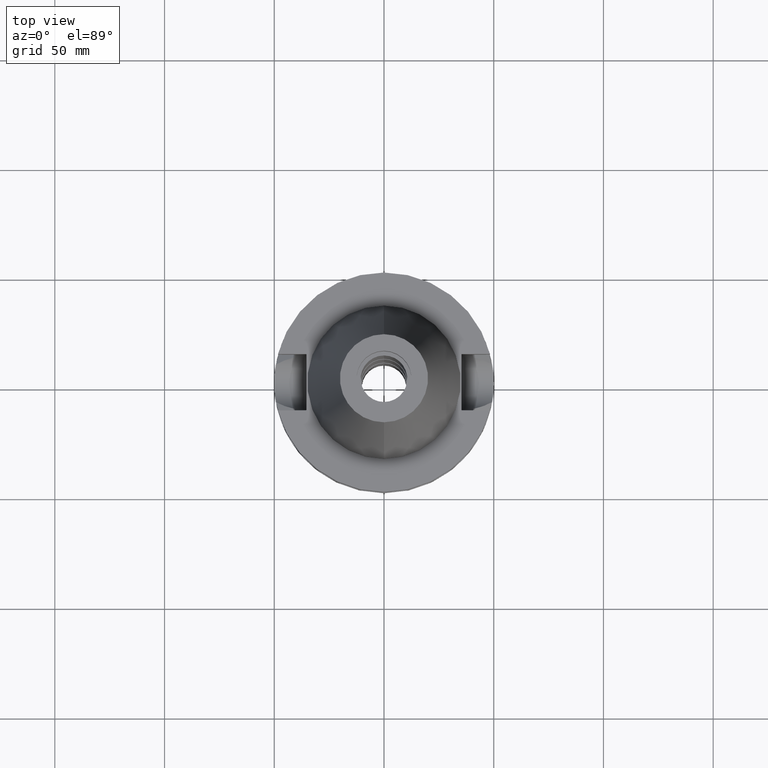
[diagram: clean part render]
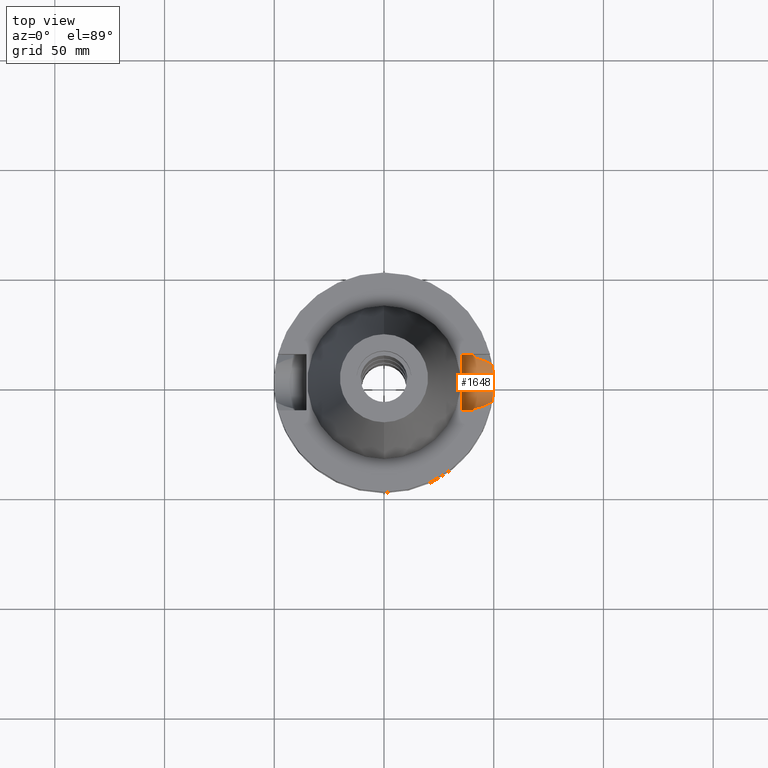
[diagram: same view with one face highlighted and labeled with its STEP entity id]
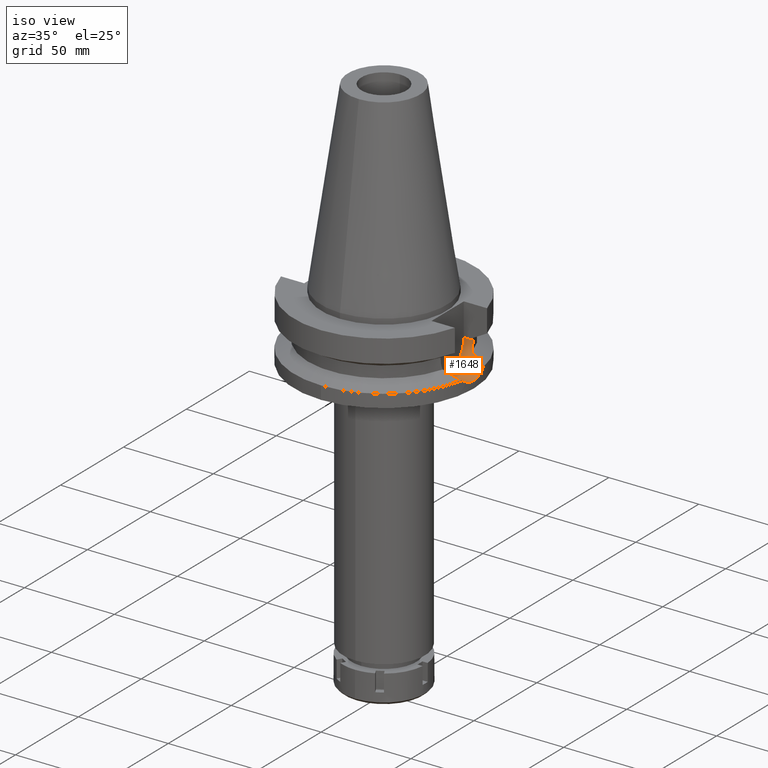
[diagram: same view with one face highlighted and labeled with its STEP entity id]
A machine part, top view. The second image highlights one B-rep face of the part: STEP entity #1648.
A second angle (iso view) of the same face is appended — the face is thin or edge-on in the first view.
In plain terms, the highlighted cylindrical surface (edge-blend (fillet) strip) has radius 12.85 mm, axis along (1, 0, 0).
Its self-contained STEP definition (entity closure, byte-faithful):
#46 = CARTESIAN_POINT ( 'NONE',  ( 40.73816446295361260, -12.11684043061108085, -25.53408629900406623 ) ) ;
#65 = CARTESIAN_POINT ( 'NONE',  ( 49.79167157622549666, 4.559534594611776015, -33.16387391772772020 ) ) ;
#117 = CARTESIAN_POINT ( 'NONE',  ( 49.78846270866008439, -4.594523424855490923, -33.15054213385935356 ) ) ;
#132 = CARTESIAN_POINT ( 'NONE',  ( 41.72695202863123853, -11.52184949740022546, -26.86112744394866780 ) ) ;
#136 = CARTESIAN_POINT ( 'NONE',  ( 49.71768142624588194, -5.302013673065737009, -32.85645924774143367 ) ) ;
#150 = CARTESIAN_POINT ( 'NONE',  ( 44.63123778810563635, -10.63756159773538634, -28.35952781543874934 ) ) ;
#175 = CARTESIAN_POINT ( 'NONE',  ( 40.59187880780699942, -12.59183787880622774, -23.71299268441998365 ) ) ;
#200 = CARTESIAN_POINT ( 'NONE',  ( 45.52394512665422610, 10.31079105187837719, -28.81878539422804053 ) ) ;
#219 = CARTESIAN_POINT ( 'NONE',  ( 46.11449621621563466, 10.07893013801353455, -29.12244178484737134 ) ) ;
#260 = CARTESIAN_POINT ( 'NONE',  ( 40.51818672788441233, -12.82722302283209537, -22.03685123483571218 ) ) ;
#272 = CARTESIAN_POINT ( 'NONE',  ( 35.39999999999999858, 12.84999999999999964, -21.14999999999999858 ) ) ;
#296 = CARTESIAN_POINT ( 'NONE',  ( 49.66983879164600779, 5.762335365603226123, -32.66220278209613070 ) ) ;
#330 = EDGE_CURVE ( 'NONE', #3474, #2330, #1992, .T. ) ;
#372 = CARTESIAN_POINT ( 'NONE',  ( 49.77976537357478293, -4.687973146015734116, -33.11444670168626914 ) ) ;
#401 = CARTESIAN_POINT ( 'NONE',  ( 49.26250064874000145, -8.556052234130000045, -30.73730776426999967 ) ) ;
#417 = VECTOR ( 'NONE', #1422, 1000.000000000000000 ) ;
#421 = CARTESIAN_POINT ( 'NONE',  ( 49.79049223401477064, -4.572427591324562002, -33.15897282298296034 ) ) ;
#450 = CARTESIAN_POINT ( 'NONE',  ( 40.60092153270026927, 12.56264230965691020, -23.85246783902318413 ) ) ;
#456 = CARTESIAN_POINT ( 'NONE',  ( 45.41306824773652551, -10.35296097958683426, -28.76175938571563151 ) ) ;
#459 = CARTESIAN_POINT ( 'NONE',  ( 40.56599320780300388, -12.67510280107394571, -23.26591223435243094 ) ) ;
#506 = CARTESIAN_POINT ( 'NONE',  ( 40.66327078203668322, 12.35978912949376252, -24.67232732615307000 ) ) ;
#544 = CARTESIAN_POINT ( 'NONE',  ( 49.26250064874000145, 8.556052234130000045, -30.73730776426999967 ) ) ;
#575 = DIRECTION ( 'NONE',  ( 0.0000000000000000000, 0.0000000000000000000, -1.000000000000000000 ) ) ;
#584 = CARTESIAN_POINT ( 'NONE',  ( 49.90868002525166247, 3.033071862613983427, -33.64325143797999829 ) ) ;
#588 = B_SPLINE_CURVE_WITH_KNOTS ( 'NONE', 3,
 ( #3086, #2803, #260, #3665, #3013, #459, #1600, #2730, #175, #2034, #1486, #2608, #46, #1166 ),
 .UNSPECIFIED., .F., .F.,
 ( 4, 2, 2, 1, 1, 2, 2, 4 ),
 ( 0.0000000000000000000, 0.2499999999999988898, 0.3749999999999984457, 0.4374999999999990563, 0.4687499999999992784, 0.4843749999999995004, 0.4999999999999997780, 1.000000000000000000 ),
 .UNSPECIFIED. ) ;
#593 = LINE ( 'NONE', #272, #1974 ) ;
#624 = CARTESIAN_POINT ( 'NONE',  ( 49.38717941611994888, 7.838199223078202493, -31.37794515800011652 ) ) ;
#689 = CARTESIAN_POINT ( 'NONE',  ( 49.76773170150818260, -4.814189221242565431, -33.06456005433830825 ) ) ;
#693 = EDGE_CURVE ( 'NONE', #2364, #901, #3269, .T. ) ;
#725 = CARTESIAN_POINT ( 'NONE',  ( 40.51083188481999997, 12.84999999999999964, -21.14999999999999858 ) ) ;
#797 = CARTESIAN_POINT ( 'NONE',  ( 35.39999999999999858, 0.0000000000000000000, -21.14999999999999858 ) ) ;
#800 = EDGE_CURVE ( 'NONE', #2903, #2150, #920, .T. ) ;
#805 = ORIENTED_EDGE ( 'NONE', *, *, #2548, .T. ) ;
#847 = CARTESIAN_POINT ( 'NONE',  ( 40.85052569294000335, -11.72538061688000077, -26.40718074535000426 ) ) ;
#853 = CARTESIAN_POINT ( 'NONE',  ( 49.93042287638220955, 2.648955485561525602, -33.73001242576225422 ) ) ;
#880 = ORIENTED_EDGE ( 'NONE', *, *, #3141, .T. ) ;
#898 = AXIS2_PLACEMENT_3D ( 'NONE', #797, #1993, #575 ) ;
#901 = VERTEX_POINT ( 'NONE', #1236 ) ;
#916 = CARTESIAN_POINT ( 'NONE',  ( 49.79235471004053437, 4.552050085695237946, -33.16671254725967799 ) ) ;
#920 = B_SPLINE_CURVE_WITH_KNOTS ( 'NONE', 3,
 ( #2895, #1202, #3409, #853, #584, #3165, #1484, #3468, #3425, #2049, #2840, #2011, #916, #65, #931, #296, #1221, #624, #1736 ),
 .UNSPECIFIED., .F., .F.,
 ( 4, 2, 2, 1, 1, 1, 1, 1, 2, 2, 2, 4 ),
 ( 0.0000000000000000000, 0.2499999999999735767, 0.3749999999999601430, 0.4374999999999533151, 0.4687499999999499845, 0.4843749999999483746, 0.4921874999999481526, 0.4960937499999479861, 0.4980468749999479861, 0.4999999999999479305, 0.7499999999999739098, 1.000000000000000000 ),
 .UNSPECIFIED. ) ;
#931 = CARTESIAN_POINT ( 'NONE',  ( 49.73969140305771219, 5.128104573547205725, -32.94785015692511365 ) ) ;
#1051 = ORIENTED_EDGE ( 'NONE', *, *, #330, .F. ) ;
#1060 = CARTESIAN_POINT ( 'NONE',  ( 46.36885263560388637, 9.973649025647654653, -29.25316101098443156 ) ) ;
#1081 = CARTESIAN_POINT ( 'NONE',  ( 47.19344910160641859, 9.615900425875310020, -29.67669642626275817 ) ) ;
#1085 = FACE_OUTER_BOUND ( 'NONE', #1254, .T. ) ;
#1094 = ORIENTED_EDGE ( 'NONE', *, *, #800, .T. ) ;
#1097 = CARTESIAN_POINT ( 'NONE',  ( 35.39999999999999858, 12.84999999999999964, -21.14999999999999858 ) ) ;
#1103 = CARTESIAN_POINT ( 'NONE',  ( 49.26250064874000145, 8.556052234130000045, -30.73730776426999967 ) ) ;
#1106 = ORIENTED_EDGE ( 'NONE', *, *, #693, .T. ) ;
#1166 = CARTESIAN_POINT ( 'NONE',  ( 40.85052569294000335, -11.72538061688000077, -26.40718074535000426 ) ) ;
#1202 = CARTESIAN_POINT ( 'NONE',  ( 50.00000000000001421, 0.7411344755569528875, -34.00000000000000000 ) ) ;
#1221 = CARTESIAN_POINT ( 'NONE',  ( 49.49358279817711548, 7.117195281448393196, -31.87757442703206223 ) ) ;
#1233 = CARTESIAN_POINT ( 'NONE',  ( 49.38718223195836998, -7.838183010540669571, -31.37795962664149840 ) ) ;
#1236 = CARTESIAN_POINT ( 'NONE',  ( 49.26250064874000145, -8.556052234130000045, -30.73730776426999967 ) ) ;
#1254 = EDGE_LOOP ( 'NONE', ( #2069, #880, #2998, #805, #1051, #3189, #1106, #2170, #1094 ) ) ;
#1285 = CARTESIAN_POINT ( 'NONE',  ( 45.34957090568771321, -10.37694622521031285, -28.72910062368678652 ) ) ;
#1288 = CARTESIAN_POINT ( 'NONE',  ( 49.75677467196931048, -4.924702406177010161, -33.01913543144370777 ) ) ;
#1311 = CARTESIAN_POINT ( 'NONE',  ( 40.85052569294000335, 11.72538061688000077, -26.40718074535000426 ) ) ;
#1337 = CARTESIAN_POINT ( 'NONE',  ( 40.74530080281117961, 12.08736009434965553, -25.53452049776151611 ) ) ;
#1344 = CARTESIAN_POINT ( 'NONE',  ( 44.15654115118628908, 10.83271555741861114, -28.11551176893261683 ) ) ;
#1362 = CARTESIAN_POINT ( 'NONE',  ( 48.13334722818734690, 9.173432845826361870, -30.15894009343378457 ) ) ;
#1370 = CARTESIAN_POINT ( 'NONE',  ( 40.60613069944914599, 12.54580339937320943, -23.92957563982541913 ) ) ;
#1402 = EDGE_CURVE ( 'NONE', #901, #2903, #3588, .T. ) ;
#1422 = DIRECTION ( 'NONE',  ( -1.000000000000000000, -3.510427359434999885E-14, 0.0000000000000000000 ) ) ;
#1484 = CARTESIAN_POINT ( 'NONE',  ( 49.84834361336439201, 3.896014778068053630, -33.39804380112810378 ) ) ;
#1486 = CARTESIAN_POINT ( 'NONE',  ( 40.59736304646015270, -12.57413740470831698, -23.79844990303990571 ) ) ;
#1518 = CARTESIAN_POINT ( 'NONE',  ( 49.91304139983333243, -3.031509745432707348, -33.66147740621446616 ) ) ;
#1547 = CARTESIAN_POINT ( 'NONE',  ( 49.66528726166652064, -5.772701196736823803, -32.63558093118592041 ) ) ;
#1567 = CARTESIAN_POINT ( 'NONE',  ( 49.49358958280588894, -7.117144943669853951, -31.87761218564103771 ) ) ;
#1596 = CARTESIAN_POINT ( 'NONE',  ( 49.26250064874000145, -8.556052234130000045, -30.73730776426999967 ) ) ;
#1600 = CARTESIAN_POINT ( 'NONE',  ( 40.57495692278774158, -12.64634763150194097, -23.43364197066028254 ) ) ;
#1617 = CARTESIAN_POINT ( 'NONE',  ( 43.71411760152985693, -10.94470254648135388, -27.88719717605412640 ) ) ;
#1648 = ADVANCED_FACE ( 'NONE', ( #1085 ), #2784, .F. ) ;
#1704 = CARTESIAN_POINT ( 'NONE',  ( 50.00000000000000000, 1.784861477417000026E-14, -34.00000000000000000 ) ) ;
#1736 = CARTESIAN_POINT ( 'NONE',  ( 49.26250064874000145, 8.556052234130000045, -30.73730776426999967 ) ) ;
#1783 = CARTESIAN_POINT ( 'NONE',  ( 35.39999999999999858, 0.0000000000000000000, -21.14999999999999858 ) ) ;
#1789 = CARTESIAN_POINT ( 'NONE',  ( 49.73400400824914414, -5.148705446761065119, -32.92453230238565709 ) ) ;
#1840 = CARTESIAN_POINT ( 'NONE',  ( 49.78968176231763465, -4.581260904491501584, -33.15560581003837370 ) ) ;
#1868 = CARTESIAN_POINT ( 'NONE',  ( 40.79434480643646310, 11.92111146967505952, -25.97063141241893547 ) ) ;
#1874 = CARTESIAN_POINT ( 'NONE',  ( 42.55240329774009922, -11.29884384422376620, -27.28791383645897994 ) ) ;
#1878 = CARTESIAN_POINT ( 'NONE',  ( 46.86981271928318193, 9.760815914162622065, -29.51053501378897792 ) ) ;
#1911 = CARTESIAN_POINT ( 'NONE',  ( 40.85052569294000335, -11.72538061688000077, -26.40718074535000426 ) ) ;
#1974 = VECTOR ( 'NONE', #2541, 1000.000000000000000 ) ;
#1992 = LINE ( 'NONE', #2823, #417 ) ;
#1993 = DIRECTION ( 'NONE',  ( 1.000000000000000000, 0.0000000000000000000, 0.0000000000000000000 ) ) ;
#1999 = CARTESIAN_POINT ( 'NONE',  ( 40.51083188481999997, -12.84999999999999964, -21.14999999999999858 ) ) ;
#2011 = CARTESIAN_POINT ( 'NONE',  ( 49.79343760594647250, 4.540156166081057876, -33.17121135384211073 ) ) ;
#2020 = CARTESIAN_POINT ( 'NONE',  ( 40.85052569294000335, 11.72538061688000077, -26.40718074535000426 ) ) ;
#2034 = CARTESIAN_POINT ( 'NONE',  ( 40.59544130991633892, -12.58034215982311466, -23.76883634622456398 ) ) ;
#2049 = CARTESIAN_POINT ( 'NONE',  ( 49.79881917393380775, 4.480667282867932144, -33.19355638855608248 ) ) ;
#2059 = EDGE_CURVE ( 'NONE', #2694, #2423, #593, .T. ) ;
#2069 = ORIENTED_EDGE ( 'NONE', *, *, #3388, .T. ) ;
#2086 = CARTESIAN_POINT ( 'NONE',  ( 49.79075586834895972, -4.569551829111532015, -33.16006813157581234 ) ) ;
#2097 = AXIS2_PLACEMENT_3D ( 'NONE', #1783, #2412, #2986 ) ;
#2139 = CARTESIAN_POINT ( 'NONE',  ( 50.00000000000000000, 1.784861477417000026E-14, -34.00000000000000000 ) ) ;
#2150 = VERTEX_POINT ( 'NONE', #544 ) ;
#2170 = ORIENTED_EDGE ( 'NONE', *, *, #1402, .T. ) ;
#2176 = CARTESIAN_POINT ( 'NONE',  ( 45.54719868882244782, 10.30188632293297601, -28.83074470532917388 ) ) ;
#2213 = CARTESIAN_POINT ( 'NONE',  ( 40.85052569294000335, 11.72538061688000077, -26.40718074535000426 ) ) ;
#2219 = CIRCLE ( 'NONE', #2097, 12.84999999999999964 ) ;
#2226 = CARTESIAN_POINT ( 'NONE',  ( 40.51083188481999287, 12.84999999999999964, -22.03306420386933695 ) ) ;
#2260 = VERTEX_POINT ( 'NONE', #2020 ) ;
#2330 = VERTEX_POINT ( 'NONE', #2833 ) ;
#2364 = VERTEX_POINT ( 'NONE', #847 ) ;
#2412 = DIRECTION ( 'NONE',  ( -1.000000000000000000, 0.0000000000000000000, 0.0000000000000000000 ) ) ;
#2417 = CARTESIAN_POINT ( 'NONE',  ( 50.00000000000000000, -0.7411200681605115692, -34.00000000000000000 ) ) ;
#2423 = VERTEX_POINT ( 'NONE', #2633 ) ;
#2449 = CARTESIAN_POINT ( 'NONE',  ( 45.20036505379954406, -10.43275246839017356, -28.65235555152838032 ) ) ;
#2473 = CARTESIAN_POINT ( 'NONE',  ( 45.59136809843026583, 10.28491122951865044, -28.85346039387473738 ) ) ;
#2497 = CARTESIAN_POINT ( 'NONE',  ( 40.68244012169061108, 12.29668327074609557, -24.88704817341103848 ) ) ;
#2541 = DIRECTION ( 'NONE',  ( 1.000000000000000000, -3.336643826789999529E-14, 0.0000000000000000000 ) ) ;
#2548 = EDGE_CURVE ( 'NONE', #2694, #2330, #2219, .T. ) ;
#2608 = CARTESIAN_POINT ( 'NONE',  ( 40.65435256583787549, -12.39003828017185427, -24.66355282957904294 ) ) ;
#2633 = CARTESIAN_POINT ( 'NONE',  ( 40.51083188481999997, 12.84999999999999964, -21.14999999999999858 ) ) ;
#2653 = CARTESIAN_POINT ( 'NONE',  ( 49.78559482734255681, -4.625556967520964236, -33.13863445799344021 ) ) ;
#2693 = CARTESIAN_POINT ( 'NONE',  ( 49.86086623973334753, -3.802647964326340002, -33.45142282165367220 ) ) ;
#2694 = VERTEX_POINT ( 'NONE', #1097 ) ;
#2701 = CARTESIAN_POINT ( 'NONE',  ( 40.62482334720413490, 12.48526811858512353, -24.19322874753378727 ) ) ;
#2730 = CARTESIAN_POINT ( 'NONE',  ( 40.58662124421019968, -12.60879381994003090, -23.62921300446435069 ) ) ;
#2760 = CARTESIAN_POINT ( 'NONE',  ( 45.45530024842548755, -10.33695596987587351, -28.78348041641067212 ) ) ;
#2764 = CARTESIAN_POINT ( 'NONE',  ( 45.65750107604360153, 10.25940794899631570, -28.88747069982555971 ) ) ;
#2784 = CYLINDRICAL_SURFACE ( 'NONE', #898, 12.85000000000000320 ) ;
#2803 = CARTESIAN_POINT ( 'NONE',  ( 40.51083188481999997, -12.84999999999999964, -21.59153425996736786 ) ) ;
#2823 = CARTESIAN_POINT ( 'NONE',  ( 40.51083188481999997, -12.84999999999999964, -21.14999999999999858 ) ) ;
#2833 = CARTESIAN_POINT ( 'NONE',  ( 35.39999999999999858, -12.84999999999999964, -21.14999999999999858 ) ) ;
#2840 = CARTESIAN_POINT ( 'NONE',  ( 49.79505876481736237, 4.522313403485289207, -33.17794514013029783 ) ) ;
#2895 = CARTESIAN_POINT ( 'NONE',  ( 50.00000000000000000, 1.784861477417000026E-14, -34.00000000000000000 ) ) ;
#2903 = VERTEX_POINT ( 'NONE', #1704 ) ;
#2915 = CARTESIAN_POINT ( 'NONE',  ( 49.62578926052089656, -6.100916815301578922, -32.46611871851167308 ) ) ;
#2937 = CARTESIAN_POINT ( 'NONE',  ( 49.98260827996666933, -1.500739276010107259, -33.93573032127258671 ) ) ;
#2986 = DIRECTION ( 'NONE',  ( 0.0000000000000000000, 1.000000000000000000, 0.0000000000000000000 ) ) ;
#2998 = ORIENTED_EDGE ( 'NONE', *, *, #2059, .F. ) ;
#3001 = CARTESIAN_POINT ( 'NONE',  ( 40.61156285954857026, 12.52823285237359130, -24.00849237159464167 ) ) ;
#3009 = CARTESIAN_POINT ( 'NONE',  ( 44.08861193614752239, -10.82337365640191607, -28.08015980787621046 ) ) ;
#3013 = CARTESIAN_POINT ( 'NONE',  ( 40.54944481090810626, -12.72806977530067840, -22.93044999934753037 ) ) ;
#3031 = CARTESIAN_POINT ( 'NONE',  ( 45.81096339955263375, 10.19961825139631983, -28.96638528637649301 ) ) ;
#3044 = CARTESIAN_POINT ( 'NONE',  ( 46.91824578726060224, -9.778909190488992209, -29.53589573621364650 ) ) ;
#3086 = CARTESIAN_POINT ( 'NONE',  ( 40.51083188481999997, -12.84999999999999964, -21.14999999999999858 ) ) ;
#3141 = EDGE_CURVE ( 'NONE', #2260, #2423, #3381, .T. ) ;
#3165 = CARTESIAN_POINT ( 'NONE',  ( 49.86954289321666778, 3.608495417701580887, -33.48453890198249638 ) ) ;
#3189 = ORIENTED_EDGE ( 'NONE', *, *, #3460, .T. ) ;
#3269 = B_SPLINE_CURVE_WITH_KNOTS ( 'NONE', 3,
 ( #1911, #132, #1874, #1617, #3009, #150, #3311, #2449, #1285, #456, #2760, #3343, #3044, #3592, #1596 ),
 .UNSPECIFIED., .F., .F.,
 ( 4, 2, 2, 1, 1, 1, 2, 2, 4 ),
 ( 0.0000000000000000000, 0.2499999999999961142, 0.3749999999999942824, 0.4374999999999924505, 0.4687499999999922839, 0.4843749999999919509, 0.4921874999999915068, 0.4999999999999910627, 1.000000000000000000 ),
 .UNSPECIFIED. ) ;
#3305 = CARTESIAN_POINT ( 'NONE',  ( 40.54024891269926911, 12.75863239535543059, -22.93144942354764737 ) ) ;
#3311 = CARTESIAN_POINT ( 'NONE',  ( 44.89777180159259018, -10.54369986332112497, -28.49669416976078651 ) ) ;
#3320 = CARTESIAN_POINT ( 'NONE',  ( 40.60256501628037284, 12.55733133482484476, -23.87702281264044402 ) ) ;
#3343 = CARTESIAN_POINT ( 'NONE',  ( 45.47518192561215500, -10.32939791229225790, -28.79370596452621456 ) ) ;
#3381 = B_SPLINE_CURVE_WITH_KNOTS ( 'NONE', 3,
 ( #1311, #1868, #1337, #2497, #506, #3638, #2701, #3001, #1370, #3320, #450, #3305, #2226, #725 ),
 .UNSPECIFIED., .F., .F.,
 ( 4, 2, 2, 1, 1, 2, 2, 4 ),
 ( 0.0000000000000000000, 0.2500000000000013323, 0.3750000000000030531, 0.4375000000000029976, 0.4687500000000029421, 0.4843750000000029421, 0.5000000000000028866, 1.000000000000000000 ),
 .UNSPECIFIED. ) ;
#3388 = EDGE_CURVE ( 'NONE', #2150, #2260, #3524, .T. ) ;
#3409 = CARTESIAN_POINT ( 'NONE',  ( 49.98260571909555949, 1.500791155632794416, -33.93572786721393442 ) ) ;
#3425 = CARTESIAN_POINT ( 'NONE',  ( 49.80625081250381925, 4.397324401717709996, -33.22437557485738324 ) ) ;
#3460 = EDGE_CURVE ( 'NONE', #3474, #2364, #588, .T. ) ;
#3468 = CARTESIAN_POINT ( 'NONE',  ( 49.82075737099248158, 4.230447167580822843, -33.28440370200681286 ) ) ;
#3474 = VERTEX_POINT ( 'NONE', #1999 ) ;
#3524 = B_SPLINE_CURVE_WITH_KNOTS ( 'NONE', 3,
 ( #1103, #3595, #1362, #1081, #1878, #1060, #219, #3031, #2764, #2473, #2176, #200, #1344, #3629, #2213 ),
 .UNSPECIFIED., .F., .F.,
 ( 4, 2, 2, 1, 1, 1, 2, 2, 4 ),
 ( 0.0000000000000000000, 0.2500000000000156541, 0.3750000000000232592, 0.4375000000000269229, 0.4687500000000299205, 0.4843750000000306977, 0.4921875000000311418, 0.5000000000000315303, 1.000000000000000000 ),
 .UNSPECIFIED. ) ;
#3588 = B_SPLINE_CURVE_WITH_KNOTS ( 'NONE', 3,
 ( #401, #1233, #1567, #2915, #1547, #136, #1789, #1288, #689, #372, #2653, #117, #1840, #421, #2086, #2693, #1518, #2937, #2417, #2139 ),
 .UNSPECIFIED., .F., .F.,
 ( 4, 2, 2, 2, 1, 1, 1, 1, 2, 2, 2, 4 ),
 ( 0.0000000000000000000, 0.2500000000000708322, 0.3750000000001056932, 0.4375000000001235123, 0.4687500000001323941, 0.4843750000001363909, 0.4921875000001385558, 0.4960937500001394995, 0.4980468750001392775, 0.5000000000001389999, 0.7500000000000695000, 1.000000000000000000 ),
 .UNSPECIFIED. ) ;
#3592 = CARTESIAN_POINT ( 'NONE',  ( 48.17328503414093177, -9.181115986571578347, -30.17947878380489968 ) ) ;
#3595 = CARTESIAN_POINT ( 'NONE',  ( 48.71859795205622135, 8.868179471376899770, -30.45875438815659919 ) ) ;
#3629 = CARTESIAN_POINT ( 'NONE',  ( 42.60574700136086790, 11.31776831303260522, -27.31630098265008399 ) ) ;
#3638 = CARTESIAN_POINT ( 'NONE',  ( 40.63719310363511283, 12.44501386261014453, -24.35254574346263823 ) ) ;
#3665 = CARTESIAN_POINT ( 'NONE',  ( 40.54025125707759969, -12.75732221048139436, -22.70680567686178009 ) ) ;